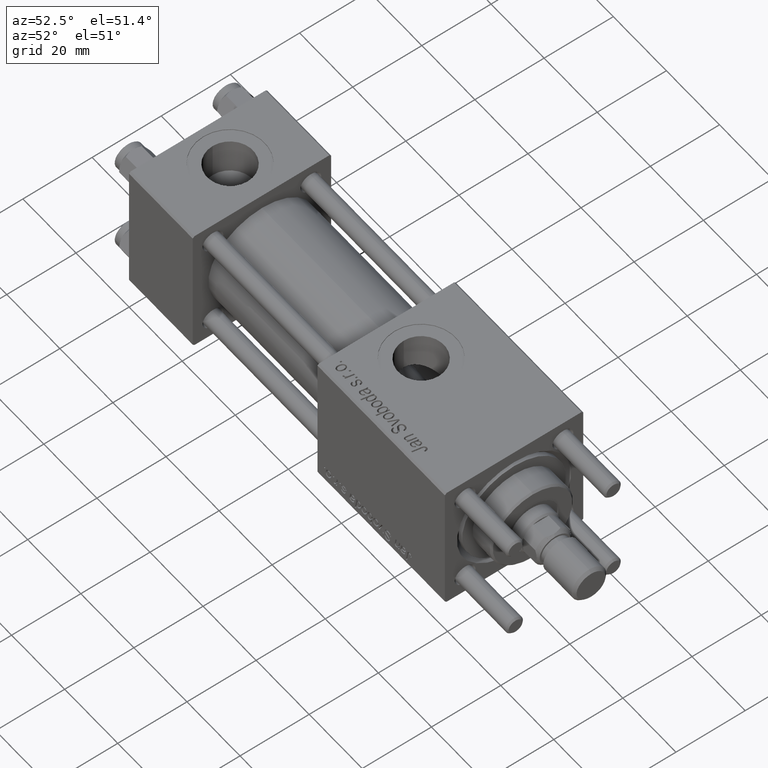
[diagram: clean part render]
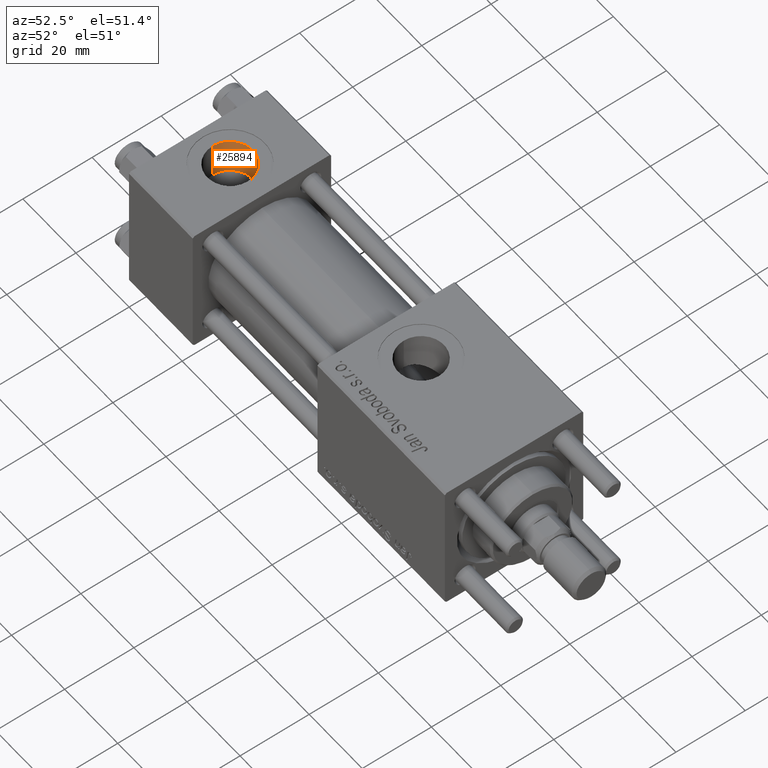
[diagram: same view with one face highlighted and labeled with its STEP entity id]
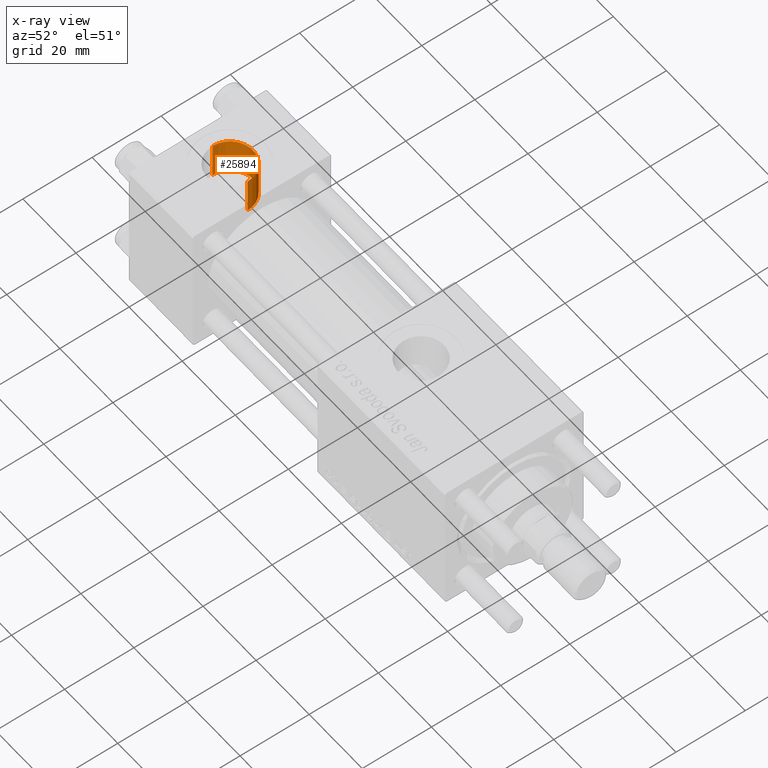
[diagram: x-ray of the same camera — body ghosted, the highlighted face saturated]
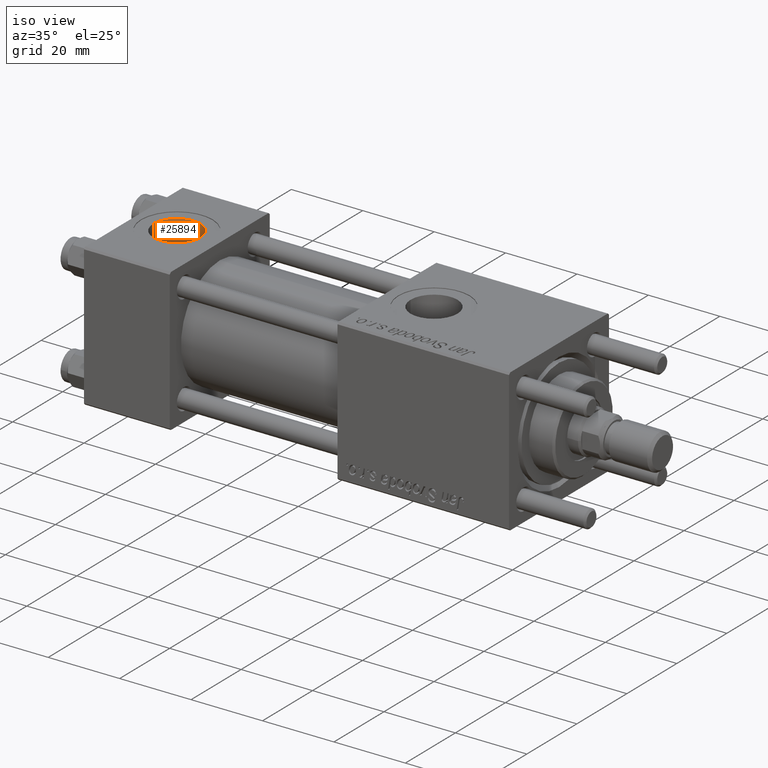
[diagram: same view with one face highlighted and labeled with its STEP entity id]
A machine part, auxiliary view. The second image highlights one B-rep face of the part: STEP entity #25894.
The next image is the same camera in x-ray: the body ghosted, the highlighted face saturated — about 0% of this face is hidden behind the body in this view.
A second angle (iso view) of the same face is appended — the face is thin or edge-on in the first view.
In plain terms, the highlighted cylindrical surface (edge-blend (fillet) strip) has radius 6.58 mm, axis along (0, 0, 1).
Its self-contained STEP definition (entity closure, byte-faithful):
#1802 = CIRCLE ( 'NONE', #44569, 6.579999999999999183 ) ;
#3060 = DIRECTION ( 'NONE',  ( -0.000000000000000000, -0.000000000000000000, 1.000000000000000000 ) ) ;
#4314 = DIRECTION ( 'NONE',  ( 0.000000000000000000, 0.000000000000000000, 1.000000000000000000 ) ) ;
#5894 = EDGE_CURVE ( 'NONE', #21256, #25802, #48548, .T. ) ;
#8733 = CYLINDRICAL_SURFACE ( 'NONE', #15929, 6.579999999999999183 ) ;
#13132 = VERTEX_POINT ( 'NONE', #29036 ) ;
#13561 = DIRECTION ( 'NONE',  ( 1.000000000000000000, 0.000000000000000000, 0.000000000000000000 ) ) ;
#15929 = AXIS2_PLACEMENT_3D ( 'NONE', #17376, #26921, #45042 ) ;
#17376 = CARTESIAN_POINT ( 'NONE',  ( 12.00000000000000000, 1.540743955509788682E-30, 9.199999999999995737 ) ) ;
#21256 = VERTEX_POINT ( 'NONE', #37628 ) ;
#22054 = DIRECTION ( 'NONE',  ( -0.000000000000000000, -0.000000000000000000, -1.000000000000000000 ) ) ;
#22316 = VERTEX_POINT ( 'NONE', #31807 ) ;
#23748 = CARTESIAN_POINT ( 'NONE',  ( 18.57999999999999829, 1.540743955509788682E-30, 9.199999999999995737 ) ) ;
#24823 = AXIS2_PLACEMENT_3D ( 'NONE', #39614, #22054, #44079 ) ;
#25802 = VERTEX_POINT ( 'NONE', #51347 ) ;
#25894 = ADVANCED_FACE ( 'NONE', ( #49523 ), #8733, .F. ) ;
#26016 = CARTESIAN_POINT ( 'NONE',  ( 5.420000000000000817, 8.058175938389596335E-16, 9.199999999999995737 ) ) ;
#26436 = ORIENTED_EDGE ( 'NONE', *, *, #40167, .T. ) ;
#26921 = DIRECTION ( 'NONE',  ( -0.000000000000000000, -0.000000000000000000, 1.000000000000000000 ) ) ;
#27425 = EDGE_CURVE ( 'NONE', #21256, #13132, #57565, .T. ) ;
#29036 = CARTESIAN_POINT ( 'NONE',  ( 5.420000000000000817, 8.058175938389596335E-16, 19.79999999999999716 ) ) ;
#31795 = LINE ( 'NONE', #23748, #44903 ) ;
#31807 = CARTESIAN_POINT ( 'NONE',  ( 18.57999999999999829, 1.540743955509788682E-30, 19.79999999999999716 ) ) ;
#32304 = EDGE_LOOP ( 'NONE', ( #57651, #34452, #26436, #33252 ) ) ;
#33252 = ORIENTED_EDGE ( 'NONE', *, *, #47660, .T. ) ;
#34452 = ORIENTED_EDGE ( 'NONE', *, *, #5894, .T. ) ;
#36836 = DIRECTION ( 'NONE',  ( -0.000000000000000000, -0.000000000000000000, 1.000000000000000000 ) ) ;
#37628 = CARTESIAN_POINT ( 'NONE',  ( 5.420000000000000817, 8.058175938389596335E-16, 9.165987261146492315 ) ) ;
#39614 = CARTESIAN_POINT ( 'NONE',  ( 12.00000000000000000, 1.540743955509788682E-30, 9.165987261146492315 ) ) ;
#40167 = EDGE_CURVE ( 'NONE', #25802, #22316, #31795, .T. ) ;
#44079 = DIRECTION ( 'NONE',  ( 1.000000000000000000, 0.000000000000000000, 0.000000000000000000 ) ) ;
#44569 = AXIS2_PLACEMENT_3D ( 'NONE', #58834, #4314, #13561 ) ;
#44903 = VECTOR ( 'NONE', #36836, 1000.000000000000000 ) ;
#45042 = DIRECTION ( 'NONE',  ( 1.000000000000000000, 0.000000000000000000, 0.000000000000000000 ) ) ;
#47660 = EDGE_CURVE ( 'NONE', #22316, #13132, #1802, .T. ) ;
#48312 = VECTOR ( 'NONE', #3060, 1000.000000000000000 ) ;
#48548 = CIRCLE ( 'NONE', #24823, 6.579999999999999183 ) ;
#49523 = FACE_OUTER_BOUND ( 'NONE', #32304, .T. ) ;
#51347 = CARTESIAN_POINT ( 'NONE',  ( 18.57999999999999829, 1.540743955509788682E-30, 9.165987261146492315 ) ) ;
#57565 = LINE ( 'NONE', #26016, #48312 ) ;
#57651 = ORIENTED_EDGE ( 'NONE', *, *, #27425, .F. ) ;
#58834 = CARTESIAN_POINT ( 'NONE',  ( 12.00000000000000000, 1.540743955509788682E-30, 19.79999999999999716 ) ) ;